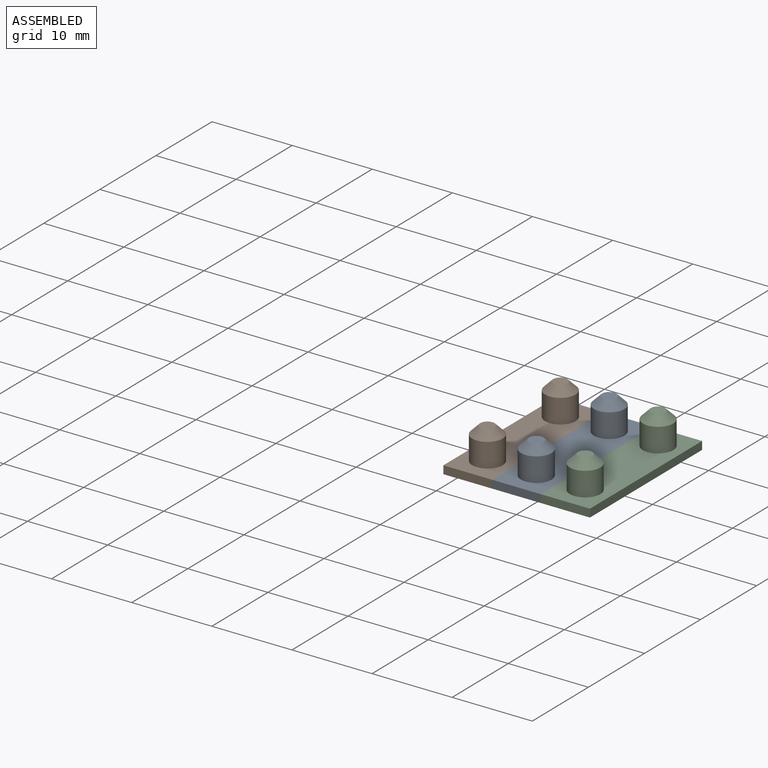
[diagram: assembled view]
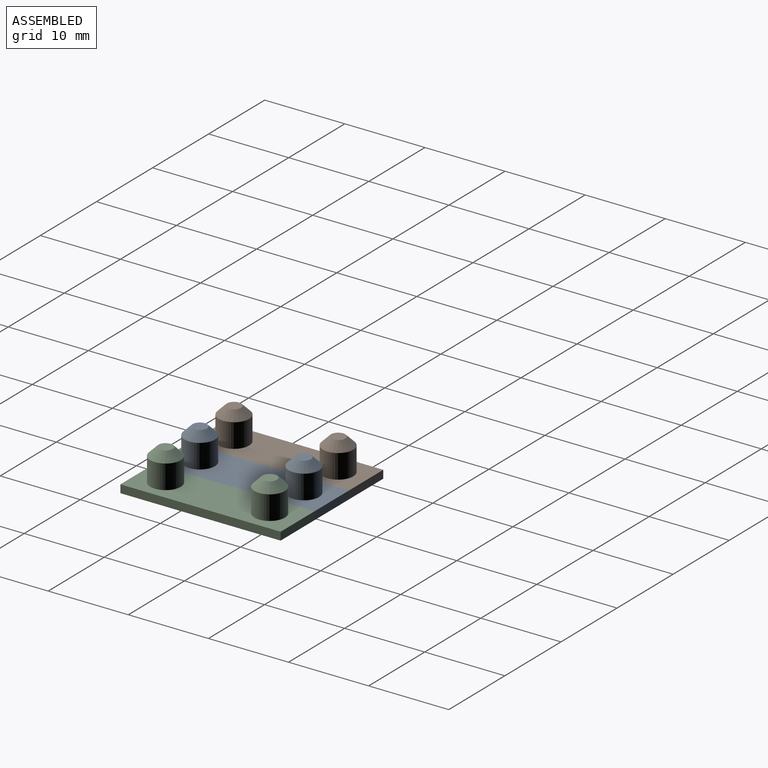
[diagram: assembled view, second angle]
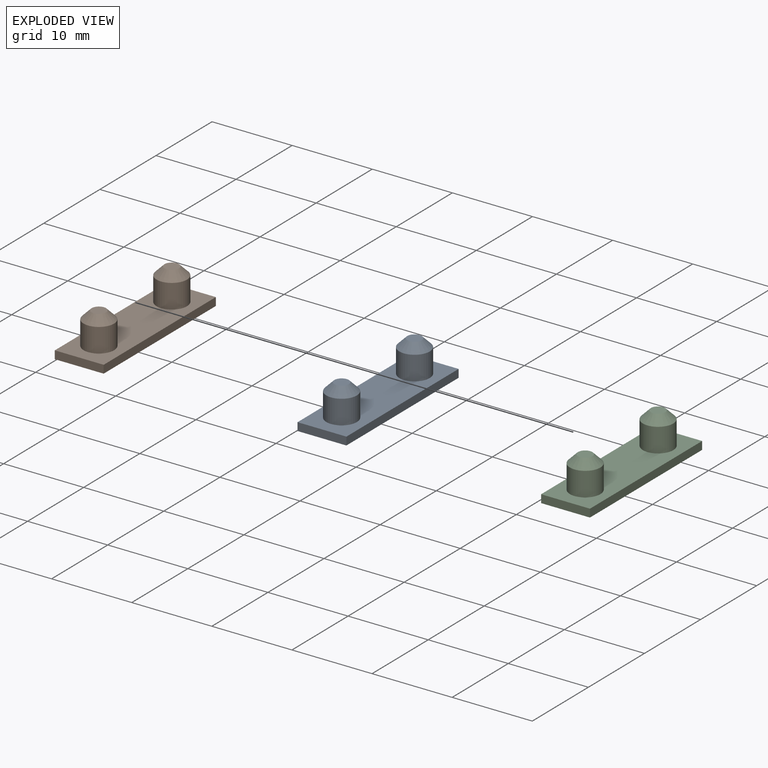
[diagram: exploded view]
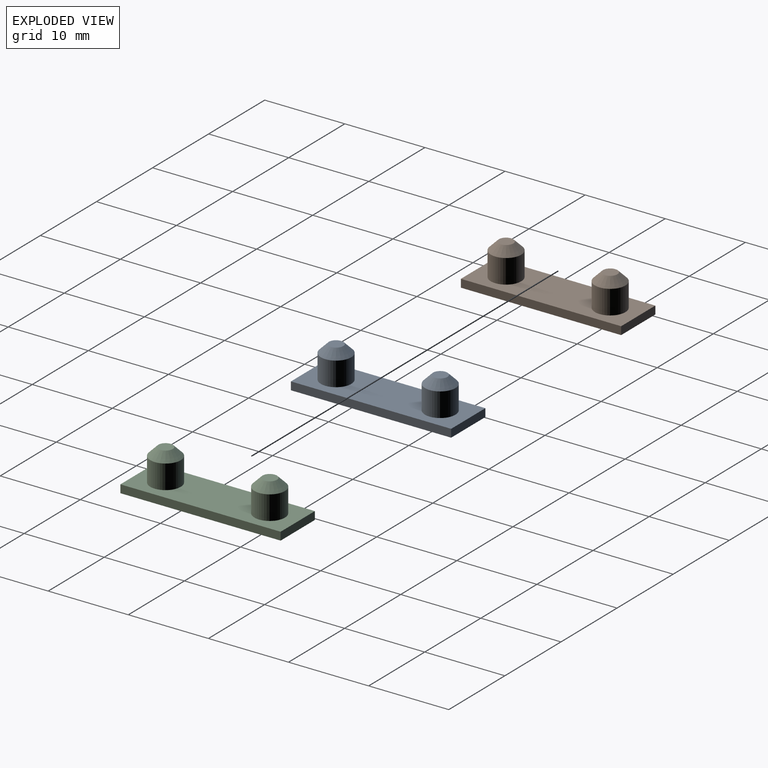
[diagram: exploded view, second angle]
ASSEMBLY  parts=3 mates=2
PART A: 12 faces, bbox 6.1x20x5 mm
  f0: plane 6.1x1mm, normal (0,1,0), area 6.1mm2, adj f1,f3,f4,f5
  f1: plane 20x1mm, normal (-1,0,0), area 20mm2, adj f0,f2,f4,f5
  f2: plane 6.1x1mm, normal (0,-1,0), area 6.1mm2, adj f1,f3,f4,f5
  f3: plane 20x1mm, normal (1,0,0), area 20mm2, adj f0,f2,f4,f5
  f4: plane 20x6.1mm, normal (0,0,1), area 99.3mm2, adj f0,f1,f2,f3,f6,f8
  f5: plane 20x6.1mm, normal (0,0,-1), area 122mm2, adj f0,f1,f2,f3
  f6: cylinder r=1.9mm len=3.8mm, axis (0,0,-1), area 35.8mm2, adj f4,f10
  f7: plane 1.8x1.8mm, normal (0,0,1), area 2.5mm2, adj f10
  f8: cylinder r=1.9mm len=3.8mm, axis (0,0,-1), area 35.8mm2, adj f4,f11
  f9: plane 1.8x1.8mm, normal (0,0,1), area 2.5mm2, adj f11
  f10: cone r=0.9mm half-angle=45deg, axis (0,0,-1), area 12.4mm2, adj f6,f7
  f11: cone r=0.9mm half-angle=45deg, axis (0,0,-1), area 12.4mm2, adj f8,f9
PART B: same geometry as A
PART C: same geometry as A
PLACE A t=(-2.05,2.98,-1.54)mm
PLACE B t=(-8.15,2.98,-1.54)mm
PLACE C t=(4.05,2.98,-1.54)mm
MATE parallel B.f3 <-> A.f1  axis (1,0,0) through (-5.1,2.98,-1.04)mm
MATE parallel A.f3 <-> C.f1  axis (1,0,0) through (1,2.98,-1.04)mm
